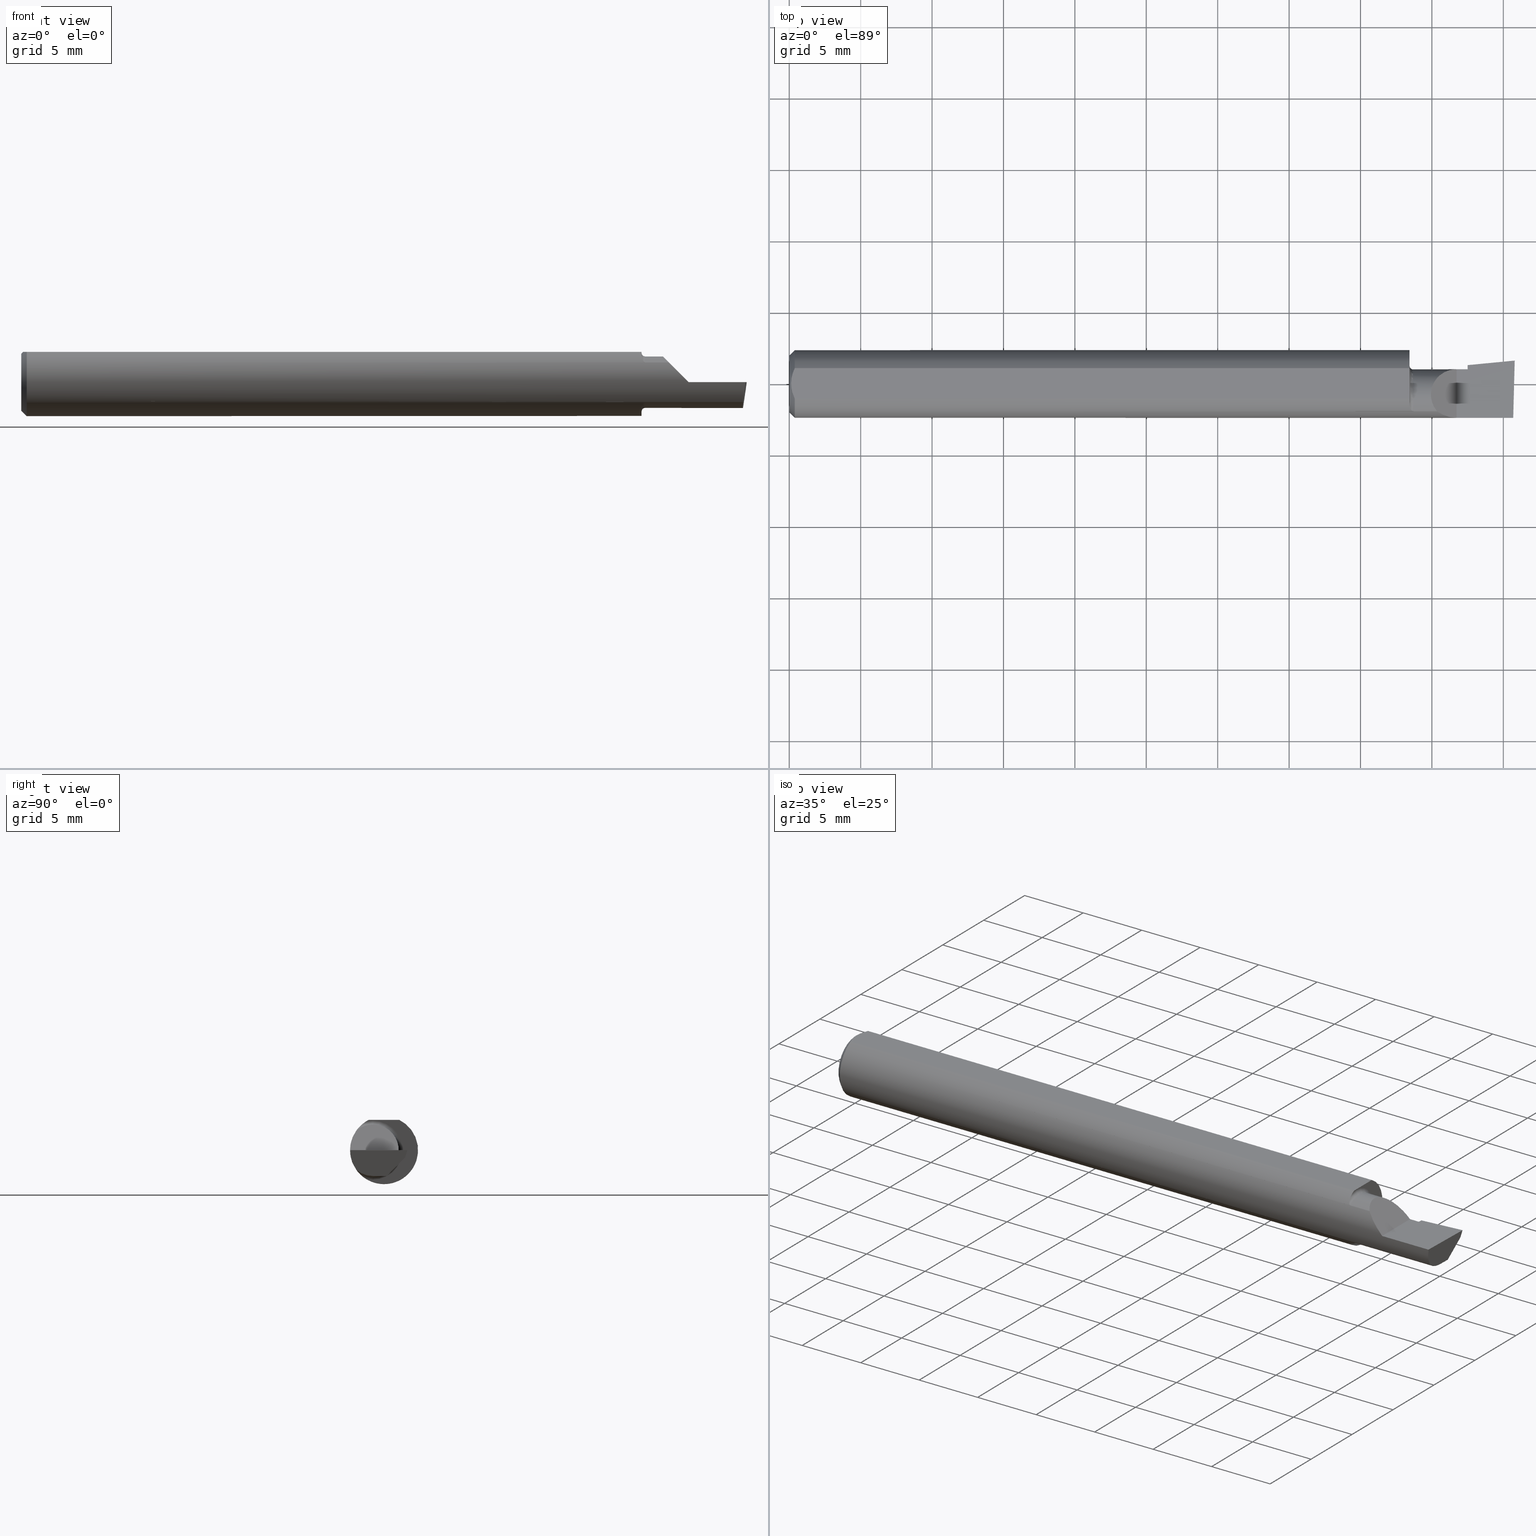
[diagram: canonical four-view strip — front | top / right | iso, engineering-drawing reading convention]
A machine part, canonical four-view strip (front | top / right | iso — engineering-drawing reading convention). The complete STEP part file that produces these views, byte-faithful:
ISO-10303-21;
HEADER;
FILE_DESCRIPTION (( 'STEP AP203' ),
    '1' );
FILE_NAME ('217327-B1601000.STEP',
    '2024-04-23T17:09:40',
    ( '' ),
    ( '' ),
    'SwSTEP 2.0',
    'SolidWorks 2022',
    '' );
FILE_SCHEMA (( 'CONFIG_CONTROL_DESIGN' ));
ENDSEC;

DATA;
#1 = AXIS2_PLACEMENT_3D ( 'NONE', #91, #97, #9 ) ;
#2 = CARTESIAN_POINT ( 'NONE',  ( 1.717274038841562378, -0.07524850451016455721, 0.05566765164098562424 ) ) ;
#3 = CALENDAR_DATE ( 2024, 23, 4 ) ;
#4 = EDGE_CURVE ( 'NONE', #520, #589, #568, .T. ) ;
#5 = CARTESIAN_POINT ( 'NONE',  ( 1.870000000000000107, 0.05188242373431979637, 0.000000000000000000 ) ) ;
#6 = CARTESIAN_POINT ( 'NONE',  ( 1.870000000000000107, -0.03060000000000022424, -0.07100000000000021572 ) ) ;
#7 = B_SPLINE_CURVE_WITH_KNOTS ( 'NONE', 3,
 ( #521, #332, #326, #80, #556, #554 ),
 .UNSPECIFIED., .F., .F.,
 ( 4, 2, 4 ),
 ( 0.005785415439423114564, 0.006333348270144337384, 0.006881281100865561072 ),
 .UNSPECIFIED. ) ;
#8 = AXIS2_PLACEMENT_3D ( 'NONE', #57, #114, #313 ) ;
#9 = DIRECTION ( 'NONE',  ( 0.000000000000000000, -1.000000000000000000, 0.000000000000000000 ) ) ;
#10 = DIRECTION ( 'NONE',  ( 0.9953961983671787417, 0.09584575252022463354, -5.467869873542577569E-16 ) ) ;
#11 = LINE ( 'NONE', #409, #120 ) ;
#12 = FACE_OUTER_BOUND ( 'NONE', #72, .T. ) ;
#13 = CIRCLE ( 'NONE', #580, 0.07100000000000020184 ) ;
#14 = DIRECTION ( 'NONE',  ( 0.000000000000000000, 0.000000000000000000, 1.000000000000000000 ) ) ;
#15 = ORIENTED_EDGE ( 'NONE', *, *, #387, .T. ) ;
#16 = DIRECTION ( 'NONE',  ( -0.000000000000000000, 1.000000000000000000, -0.000000000000000000 ) ) ;
#17 = LINE ( 'NONE', #106, #243 ) ;
#18 = EDGE_LOOP ( 'NONE', ( #101, #60, #285 ) ) ;
#19 = DIRECTION ( 'NONE',  ( 0.000000000000000000, 0.000000000000000000, 1.000000000000000000 ) ) ;
#20 = PRODUCT_DEFINITION ( 'UNKNOWN', '', #179, #455 ) ;
#21 = DIRECTION ( 'NONE',  ( 1.000000000000000000, 4.268512490100411279E-18, 0.000000000000000000 ) ) ;
#22 = APPLICATION_CONTEXT ( 'configuration controlled 3d designs of mechanical parts and assemblies' ) ;
#23 = VERTEX_POINT ( 'NONE', #432 ) ;
#24 = CARTESIAN_POINT ( 'NONE',  ( 1.709999999999999964, 0.04209513035969836975, 0.08360000000000000764 ) ) ;
#25 = VECTOR ( 'NONE', #478, 39.37007874015748854 ) ;
#26 = ORIENTED_EDGE ( 'NONE', *, *, #51, .T. ) ;
#27 = DIRECTION ( 'NONE',  ( 0.7071067811865391350, 8.659560562355035164E-17, 0.7071067811865558994 ) ) ;
#28 = ORIENTED_EDGE ( 'NONE', *, *, #442, .F. ) ;
#29 = EDGE_CURVE ( 'NONE', #616, #217, #559, .T. ) ;
#30 = DIRECTION ( 'NONE',  ( 1.000000000000000000, 0.000000000000000000, 0.000000000000000000 ) ) ;
#31 = EDGE_LOOP ( 'NONE', ( #174, #232, #310, #268 ) ) ;
#32 = FACE_OUTER_BOUND ( 'NONE', #509, .T. ) ;
#33 = CIRCLE ( 'NONE', #394, 0.07100000000000021572 ) ;
#34 = LOCAL_TIME ( 10, 9, 40.00000000000000000, #193 ) ;
#35 = ORIENTED_EDGE ( 'NONE', *, *, #494, .F. ) ;
#36 = CARTESIAN_POINT ( 'NONE',  ( 1.989797099917948398, 0.007796764149783504474, -0.07100000000000021572 ) ) ;
#37 = EDGE_LOOP ( 'NONE', ( #117, #461, #368, #15 ) ) ;
#38 = APPROVAL_ROLE ( '' ) ;
#39 = CARTESIAN_POINT ( 'NONE',  ( 1.709999999999999964, 0.05039999999999997954, 0.000000000000000000 ) ) ;
#40 = ORIENTED_EDGE ( 'NONE', *, *, #144, .T. ) ;
#41 = DIRECTION ( 'NONE',  ( -1.000000000000000000, -4.268512490100411279E-18, 0.000000000000000000 ) ) ;
#42 = ADVANCED_FACE ( 'NONE', ( #89 ), #623, .T. ) ;
#43 = CIRCLE ( 'NONE', #403, 0.09360000000000001652 ) ;
#44 = DIRECTION ( 'NONE',  ( 4.268512490100411279E-18, -1.000000000000000000, 0.000000000000000000 ) ) ;
#45 = PERSON_AND_ORGANIZATION ( #538, #482 ) ;
#46 = EDGE_CURVE ( 'NONE', #314, #616, #514, .T. ) ;
#47 = PLANE ( 'NONE',  #434 ) ;
#48 = ORIENTED_EDGE ( 'NONE', *, *, #612, .F. ) ;
#49 = CARTESIAN_POINT ( 'NONE',  ( 0.005000000000000237761, 1.025183009042025117E-17, 0.08360000000000000764 ) ) ;
#50 = ORIENTED_EDGE ( 'NONE', *, *, #578, .F. ) ;
#51 = EDGE_CURVE ( 'NONE', #130, #266, #610, .T. ) ;
#52 = DIRECTION ( 'NONE',  ( -0.7071067811865516806, 0.000000000000000000, 0.7071067811865433539 ) ) ;
#53 = VECTOR ( 'NONE', #121, 39.37007874015748143 ) ;
#54 = CARTESIAN_POINT ( 'NONE',  ( 1.718473676570713593, -0.07585610839796945448, 0.05483680961684311850 ) ) ;
#55 = ORIENTED_EDGE ( 'NONE', *, *, #318, .T. ) ;
#56 = CARTESIAN_POINT ( 'NONE',  ( 1.995862624392068074, -0.09360000000000009979, -6.605666309584466665E-17 ) ) ;
#57 = CARTESIAN_POINT ( 'NONE',  ( 1.719999999999999973, -0.03060000000000023118, 0.000000000000000000 ) ) ;
#58 = LINE ( 'NONE', #264, #364 ) ;
#59 = DIRECTION ( 'NONE',  ( 0.02617694830786939167, 0.9996573249755573709, -4.246274422243602914E-17 ) ) ;
#60 = ORIENTED_EDGE ( 'NONE', *, *, #353, .F. ) ;
#61 = DIRECTION ( 'NONE',  ( 0.000000000000000000, 1.000000000000000000, 0.000000000000000000 ) ) ;
#62 = ORIENTED_EDGE ( 'NONE', *, *, #414, .F. ) ;
#63 = CARTESIAN_POINT ( 'NONE',  ( 1.770398118553869082, 0.04039999999999997760, 0.06960188144613024819 ) ) ;
#64 = CARTESIAN_POINT ( 'NONE',  ( 1.714827003863616639, -0.07277143353888318456, -0.05888471105536113165 ) ) ;
#65 = EDGE_LOOP ( 'NONE', ( #424, #572, #274, #358, #83 ) ) ;
#66 = EDGE_CURVE ( 'NONE', #520, #330, #13, .T. ) ;
#67 = CARTESIAN_POINT ( 'NONE',  ( 1.720000000000000195, -0.07608366013071793388, -0.05451822320209443601 ) ) ;
#68 = ORIENTED_EDGE ( 'NONE', *, *, #167, .T. ) ;
#69 = DIRECTION ( 'NONE',  ( 1.000000000000000000, 4.268512490100411279E-18, 0.000000000000000000 ) ) ;
#70 = VECTOR ( 'NONE', #290, 39.37007874015748143 ) ;
#71 = VECTOR ( 'NONE', #16, 39.37007874015748143 ) ;
#72 = EDGE_LOOP ( 'NONE', ( #504, #320, #614, #201 ) ) ;
#73 = PLANE ( 'NONE',  #532 ) ;
#74 = ADVANCED_FACE ( 'NONE', ( #575 ), #309, .T. ) ;
#75 = CARTESIAN_POINT ( 'NONE',  ( 1.989625015145392917, -0.07608366013071815592, -0.05451822320209428335 ) ) ;
#76 =( NAMED_UNIT ( * ) SI_UNIT ( $, .STERADIAN. ) SOLID_ANGLE_UNIT ( ) );
#77 = DIRECTION ( 'NONE',  ( -4.268512490100411279E-18, 1.000000000000000000, 0.000000000000000000 ) ) ;
#78 = ORIENTED_EDGE ( 'NONE', *, *, #516, .T. ) ;
#79 = ADVANCED_FACE ( 'NONE', ( #12 ), #360, .F. ) ;
#80 = CARTESIAN_POINT ( 'NONE',  ( 0.005975039161239527503, -0.01453776427033146371, 0.08359999999999996600 ) ) ;
#81 = AXIS2_PLACEMENT_3D ( 'NONE', #450, #600, #597 ) ;
#82 = SECURITY_CLASSIFICATION ( '', '', #617 ) ;
#83 = ORIENTED_EDGE ( 'NONE', *, *, #293, .T. ) ;
#84 = CARTESIAN_POINT ( 'NONE',  ( 0.000000000000000000, 0.000000000000000000, 0.000000000000000000 ) ) ;
#85 = CC_DESIGN_PERSON_AND_ORGANIZATION_ASSIGNMENT ( #240, #480, ( #454 ) ) ;
#86 = CARTESIAN_POINT ( 'NONE',  ( 1.995862624392068074, -0.09360000000000009979, -6.605666309584466665E-17 ) ) ;
#87 = DIRECTION ( 'NONE',  ( 2.972230601656782806E-18, -0.6963153109074925462, -0.7177360153954948085 ) ) ;
#88 = PERSON_AND_ORGANIZATION ( #538, #482 ) ;
#89 = FACE_OUTER_BOUND ( 'NONE', #486, .T. ) ;
#90 = LENGTH_MEASURE_WITH_UNIT ( LENGTH_MEASURE( 0.02539999999999999897 ), #286 );
#91 = CARTESIAN_POINT ( 'NONE',  ( 1.709999999999999964, -0.03060000000000022424, 0.000000000000000000 ) ) ;
#92 = CIRCLE ( 'NONE', #311, 0.07100000000000021572 ) ;
#93 = EDGE_CURVE ( 'NONE', #404, #283, #189, .T. ) ;
#94 = CARTESIAN_POINT ( 'NONE',  ( 1.709999999999999964, -0.05124705882352875719, -0.07832431909654745394 ) ) ;
#95 = ADVANCED_FACE ( 'NONE', ( #212 ), #406, .F. ) ;
#96 =( BOUNDED_CURVE ( )  B_SPLINE_CURVE ( 3, ( #398, #214, #63, #102 ),
 .UNSPECIFIED., .F., .T. ) 
 B_SPLINE_CURVE_WITH_KNOTS ( ( 4, 4 ),
 ( 5.587886473277674071, 7.853981633974482790 ),
 .UNSPECIFIED. ) 
 CURVE ( )  GEOMETRIC_REPRESENTATION_ITEM ( )  RATIONAL_B_SPLINE_CURVE ( ( 1.000000000000000000, 0.6159343746860732605, 0.6159343746860732605, 1.000000000000000000 ) ) 
 REPRESENTATION_ITEM ( '' )  );
#97 = DIRECTION ( 'NONE',  ( -1.000000000000000000, -4.268512490100411279E-18, -0.000000000000000000 ) ) ;
#98 = ADVANCED_FACE ( 'NONE', ( #508 ), #481, .F. ) ;
#99 = DIRECTION ( 'NONE',  ( 0.000000000000000000, 0.000000000000000000, 1.000000000000000000 ) ) ;
#100 = CARTESIAN_POINT ( 'NONE',  ( 1.870000000000000107, 0.04838794157681239327, -0.01137731495658559841 ) ) ;
#101 = ORIENTED_EDGE ( 'NONE', *, *, #4, .T. ) ;
#102 = CARTESIAN_POINT ( 'NONE',  ( 1.840000000000000080, 0.04039999999999989433, 1.959434878635762025E-17 ) ) ;
#103 = DIRECTION ( 'NONE',  ( 0.9953961983671800740, 0.09584575252021031166, -0.000000000000000000 ) ) ;
#104 = CARTESIAN_POINT ( 'NONE',  ( 1.993440754331651465, -0.09359999999999997489, -0.01971778966533913047 ) ) ;
#105 = EDGE_CURVE ( 'NONE', #217, #397, #139, .T. ) ;
#106 = CARTESIAN_POINT ( 'NONE',  ( 1.988799325593724632, -0.03030670001847553252, -0.07100000000000021572 ) ) ;
#107 = ORIENTED_EDGE ( 'NONE', *, *, #66, .T. ) ;
#108 = DIRECTION ( 'NONE',  ( 0.09165774897393337561, -0.9519021185660613282, 0.2923717047227308297 ) ) ;
#109 = CARTESIAN_POINT ( 'NONE',  ( 2.000000000000000000, 0.1436000000000000332, 0.08359999999999999376 ) ) ;
#110 = APPROVAL ( #131, 'UNSPECIFIED' ) ;
#111 = ORIENTED_EDGE ( 'NONE', *, *, #585, .F. ) ;
#112 = AXIS2_PLACEMENT_3D ( 'NONE', #288, #479, #44 ) ;
#113 = FACE_OUTER_BOUND ( 'NONE', #119, .T. ) ;
#114 = DIRECTION ( 'NONE',  ( -1.000000000000000000, -4.268512490100411279E-18, -0.000000000000000000 ) ) ;
#115 = ORIENTED_EDGE ( 'NONE', *, *, #279, .F. ) ;
#116 = PLANE ( 'NONE',  #169 ) ;
#117 = ORIENTED_EDGE ( 'NONE', *, *, #484, .T. ) ;
#118 = CARTESIAN_POINT ( 'NONE',  ( 1.870000000000000107, -0.03060000000000022424, 0.000000000000000000 ) ) ;
#119 = EDGE_LOOP ( 'NONE', ( #418, #221, #146, #355, #111 ) ) ;
#120 = VECTOR ( 'NONE', #599, 39.37007874015748143 ) ;
#121 = DIRECTION ( 'NONE',  ( 1.000000000000000000, 0.000000000000000000, 0.000000000000000000 ) ) ;
#122 = AXIS2_PLACEMENT_3D ( 'NONE', #452, #154, #255 ) ;
#123 = VERTEX_POINT ( 'NONE', #365 ) ;
#124 = CARTESIAN_POINT ( 'NONE',  ( 2.075578470192265268, -0.1475581462076027695, 0.6605145482336969298 ) ) ;
#125 = CARTESIAN_POINT ( 'NONE',  ( 1.870000000000000107, -0.2500000000000000555, 3.114870918614344945E-18 ) ) ;
#126 = ADVANCED_FACE ( 'NONE', ( #205 ), #116, .F. ) ;
#127 = ORIENTED_EDGE ( 'NONE', *, *, #194, .F. ) ;
#128 = PERSON_AND_ORGANIZATION ( #538, #482 ) ;
#129 = DIRECTION ( 'NONE',  ( 4.268512490100411279E-18, -1.000000000000000000, 0.000000000000000000 ) ) ;
#130 = VERTEX_POINT ( 'NONE', #501 ) ;
#131 = APPROVAL_STATUS ( 'not_yet_approved' ) ;
#132 = CARTESIAN_POINT ( 'NONE',  ( 1.785481776797905207, -0.07608366013071816980, 0.05451822320209426254 ) ) ;
#133 = VECTOR ( 'NONE', #27, 39.37007874015748143 ) ;
#134 = CC_DESIGN_APPROVAL ( #427, ( #179 ) ) ;
#135 = VERTEX_POINT ( 'NONE', #24 ) ;
#136 = DATE_AND_TIME ( #289, #207 ) ;
#137 = EDGE_CURVE ( 'NONE', #277, #217, #524, .T. ) ;
#138 = DIMENSIONAL_EXPONENTS ( 1.000000000000000000, 0.000000000000000000, 0.000000000000000000, 0.000000000000000000, 0.000000000000000000, 0.000000000000000000, 0.000000000000000000 ) ;
#139 = B_SPLINE_CURVE_WITH_KNOTS ( 'NONE', 3,
 ( #67, #163, #357, #305, #267, #548, #64, #506, #496, #265, #413, #603 ),
 .UNSPECIFIED., .F., .F.,
 ( 4, 2, 2, 2, 2, 4 ),
 ( 1.960583526681140727E-07, 6.028985140017707658E-05, 0.0001203836444476860413, 0.0002405712305427156665, 0.0004809464027327820185, 0.0009616967471129146683 ),
 .UNSPECIFIED. ) ;
#140 = CARTESIAN_POINT ( 'NONE',  ( 1.989539383090032976, 0.03890407463132242172, -0.07973011203839537597 ) ) ;
#141 = VERTEX_POINT ( 'NONE', #155 ) ;
#142 = COORDINATED_UNIVERSAL_TIME_OFFSET ( 8, 0, .BEHIND. ) ;
#143 = CARTESIAN_POINT ( 'NONE',  ( 1.715489888950000541, -0.07368588061300233860, 0.05773267164777336202 ) ) ;
#144 = EDGE_CURVE ( 'NONE', #266, #411, #350, .T. ) ;
#145 = APPROVAL_STATUS ( 'not_yet_approved' ) ;
#146 = ORIENTED_EDGE ( 'NONE', *, *, #414, .T. ) ;
#147 = CARTESIAN_POINT ( 'NONE',  ( 1.709999999999999964, -0.05124705882352875719, 0.07832431909654745394 ) ) ;
#148 = B_SPLINE_CURVE_WITH_KNOTS ( 'NONE', 3,
 ( #49, #250, #444, #297, #200, #396 ),
 .UNSPECIFIED., .F., .F.,
 ( 4, 2, 4 ),
 ( 0.006881281100865561072, 0.007427683811376461706, 0.007974086521887361473 ),
 .UNSPECIFIED. ) ;
#149 = VECTOR ( 'NONE', #530, 39.37007874015748143 ) ;
#150 = AXIS2_PLACEMENT_3D ( 'NONE', #84, #334, #389 ) ;
#151 = CARTESIAN_POINT ( 'NONE',  ( 1.997375993425186236, 0.05800444260848391931, -0.02000000000000000042 ) ) ;
#152 = CARTESIAN_POINT ( 'NONE',  ( 0.01499999999999999771, 0.000000000000000000, 0.000000000000000000 ) ) ;
#153 = CARTESIAN_POINT ( 'NONE',  ( 0.01499999999999999771, 0.000000000000000000, 0.000000000000000000 ) ) ;
#154 = DIRECTION ( 'NONE',  ( 0.06894566448119621160, -0.7160281025913034503, 0.6946583704589934793 ) ) ;
#155 = CARTESIAN_POINT ( 'NONE',  ( 1.785481776797905207, -0.07608366013071816980, 0.05451822320209426254 ) ) ;
#156 = AXIS2_PLACEMENT_3D ( 'NONE', #5, #393, #195 ) ;
#157 = EDGE_CURVE ( 'NONE', #23, #261, #493, .T. ) ;
#158 = LOCAL_TIME ( 10, 9, 40.00000000000000000, #142 ) ;
#159 = LINE ( 'NONE', #258, #71 ) ;
#160 = EDGE_CURVE ( 'NONE', #197, #565, #541, .T. ) ;
#161 = ORIENTED_EDGE ( 'NONE', *, *, #167, .F. ) ;
#162 = CARTESIAN_POINT ( 'NONE',  ( 0.000000000000000000, 0.000000000000000000, 0.000000000000000000 ) ) ;
#163 = CARTESIAN_POINT ( 'NONE',  ( 1.719195764731853204, -0.07608366013071808653, -0.05451822320209438744 ) ) ;
#164 = EDGE_CURVE ( 'NONE', #314, #236, #17, .T. ) ;
#165 = ORIENTED_EDGE ( 'NONE', *, *, #442, .T. ) ;
#166 = PLANE ( 'NONE',  #270 ) ;
#167 = EDGE_CURVE ( 'NONE', #416, #130, #259, .T. ) ;
#168 = ORIENTED_EDGE ( 'NONE', *, *, #160, .F. ) ;
#169 = AXIS2_PLACEMENT_3D ( 'NONE', #109, #316, #308 ) ;
#170 = CARTESIAN_POINT ( 'NONE',  ( 1.870000000000000107, -0.03060000000000022424, 0.000000000000000000 ) ) ;
#171 = EDGE_CURVE ( 'NONE', #197, #135, #329, .T. ) ;
#172 = ORIENTED_EDGE ( 'NONE', *, *, #157, .T. ) ;
#173 = CARTESIAN_POINT ( 'NONE',  ( 0.005000000000000237761, 1.025183009042025117E-17, 0.08360000000000000764 ) ) ;
#174 = ORIENTED_EDGE ( 'NONE', *, *, #345, .T. ) ;
#175 = CARTESIAN_POINT ( 'NONE',  ( 0.000000000000000000, 0.000000000000000000, -0.07859999999999965625 ) ) ;
#176 = CARTESIAN_POINT ( 'NONE',  ( 1.988791645263412011, -0.03060000000000022424, -0.07100000000000021572 ) ) ;
#177 = ADVANCED_FACE ( 'NONE', ( #322 ), #525, .F. ) ;
#178 = CARTESIAN_POINT ( 'NONE',  ( 5.659797890829555466E-31, -0.09359999999999998876, 1.030335658007946046E-15 ) ) ;
#179 = PRODUCT_DEFINITION_FORMATION_WITH_SPECIFIED_SOURCE ( 'ANY', '', #454, .NOT_KNOWN. ) ;
#180 = ORIENTED_EDGE ( 'NONE', *, *, #516, .F. ) ;
#181 = PERSON_AND_ORGANIZATION_ROLE ( 'creator' ) ;
#182 = CARTESIAN_POINT ( 'NONE',  ( 0.01499999999999999771, 1.146269404001922775E-17, 0.09360000000000001652 ) ) ;
#183 = ORIENTED_EDGE ( 'NONE', *, *, #216, .T. ) ;
#184 = COORDINATED_UNIVERSAL_TIME_OFFSET ( 8, 0, .BEHIND. ) ;
#185 = FACE_OUTER_BOUND ( 'NONE', #37, .T. ) ;
#186 = ORIENTED_EDGE ( 'NONE', *, *, #440, .F. ) ;
#187 = APPLICATION_PROTOCOL_DEFINITION ( 'international standard', 'config_control_design', 1994, #22 ) ;
#188 = CARTESIAN_POINT ( 'NONE',  ( 1.716784836976331441, -0.07487406389417279595, 0.05617172020063040255 ) ) ;
#189 = CIRCLE ( 'NONE', #269, 0.09360000000000001652 ) ;
#190 = ORIENTED_EDGE ( 'NONE', *, *, #171, .T. ) ;
#191 = DATE_AND_TIME ( #378, #490 ) ;
#192 = CARTESIAN_POINT ( 'NONE',  ( 1.710534125572247044, -0.06132673142899455060, 0.07097811612434590245 ) ) ;
#193 = COORDINATED_UNIVERSAL_TIME_OFFSET ( 8, 0, .BEHIND. ) ;
#194 = EDGE_CURVE ( 'NONE', #266, #330, #276, .T. ) ;
#195 = DIRECTION ( 'NONE',  ( 4.268512490100411279E-18, -1.000000000000000000, 0.000000000000000000 ) ) ;
#196 = DIRECTION ( 'NONE',  ( 1.000000000000000000, 4.268512490100411279E-18, 0.000000000000000000 ) ) ;
#197 = VERTEX_POINT ( 'NONE', #423 ) ;
#198 = CARTESIAN_POINT ( 'NONE',  ( 0.000000000000000000, 1.054420894065869177E-17, 0.07859999999999965625 ) ) ;
#199 = VECTOR ( 'NONE', #426, 39.37007874015748143 ) ;
#200 = CARTESIAN_POINT ( 'NONE',  ( 0.01203648650249650870, 0.03550565407121124978, 0.08360000000000000764 ) ) ;
#201 = ORIENTED_EDGE ( 'NONE', *, *, #324, .T. ) ;
#202 = LINE ( 'NONE', #208, #445 ) ;
#203 = EDGE_LOOP ( 'NONE', ( #50, #607, #539 ) ) ;
#204 = CARTESIAN_POINT ( 'NONE',  ( 0.01499999999999999771, 0.000000000000000000, -0.09360000000000001652 ) ) ;
#205 = FACE_OUTER_BOUND ( 'NONE', #553, .T. ) ;
#206 = AXIS2_PLACEMENT_3D ( 'NONE', #220, #354, #417 ) ;
#207 = LOCAL_TIME ( 10, 9, 40.00000000000000000, #569 ) ;
#208 = CARTESIAN_POINT ( 'NONE',  ( 2.000000000000000000, -0.03060000000000022424, -0.07100000000000021572 ) ) ;
#209 = ORIENTED_EDGE ( 'NONE', *, *, #318, .F. ) ;
#210 = DIRECTION ( 'NONE',  ( -1.000000000000000000, -0.000000000000000000, -0.000000000000000000 ) ) ;
#211 = EDGE_CURVE ( 'NONE', #336, #224, #615, .T. ) ;
#212 = FACE_OUTER_BOUND ( 'NONE', #441, .T. ) ;
#213 = ORIENTED_EDGE ( 'NONE', *, *, #293, .F. ) ;
#214 = CARTESIAN_POINT ( 'NONE',  ( 1.740893772288689023, -0.02263899945514331880, 0.09910622771130976616 ) ) ;
#215 = DIRECTION ( 'NONE',  ( 0.000000000000000000, 1.000000000000000000, 0.000000000000000000 ) ) ;
#216 = EDGE_CURVE ( 'NONE', #555, #141, #407, .T. ) ;
#217 = VERTEX_POINT ( 'NONE', #229 ) ;
#218 = AXIS2_PLACEMENT_3D ( 'NONE', #567, #284, #281 ) ;
#219 = CC_DESIGN_APPROVAL ( #110, ( #82 ) ) ;
#220 = CARTESIAN_POINT ( 'NONE',  ( 1.720000000000000195, -0.03060000000000022424, 0.000000000000000000 ) ) ;
#221 = ORIENTED_EDGE ( 'NONE', *, *, #211, .T. ) ;
#222 = DIRECTION ( 'NONE',  ( -1.000000000000000000, -4.268512490100411279E-18, 0.000000000000000000 ) ) ;
#223 = ADVANCED_FACE ( 'NONE', ( #32 ), #73, .F. ) ;
#224 = VERTEX_POINT ( 'NONE', #173 ) ;
#225 = CARTESIAN_POINT ( 'NONE',  ( 0.000000000000000000, 0.000000000000000000, 0.000000000000000000 ) ) ;
#226 = ORIENTED_EDGE ( 'NONE', *, *, #66, .F. ) ;
#227 = CC_DESIGN_PERSON_AND_ORGANIZATION_ASSIGNMENT ( #529, #624, ( #82 ) ) ;
#228 = AXIS2_PLACEMENT_3D ( 'NONE', #225, #30, #515 ) ;
#229 = CARTESIAN_POINT ( 'NONE',  ( 1.720000000000000195, -0.07608366013071793388, -0.05451822320209443601 ) ) ;
#230 = VECTOR ( 'NONE', #447, 39.37007874015748143 ) ;
#231 = EDGE_CURVE ( 'NONE', #520, #123, #33, .T. ) ;
#232 = ORIENTED_EDGE ( 'NONE', *, *, #137, .T. ) ;
#233 = APPLICATION_PROTOCOL_DEFINITION ( 'international standard', 'config_control_design', 1994, #247 ) ;
#234 = EDGE_CURVE ( 'NONE', #330, #520, #420, .T. ) ;
#235 = CARTESIAN_POINT ( 'NONE',  ( 1.840000000000000080, -0.09360000000000005815, 1.959434878635762025E-17 ) ) ;
#236 = VERTEX_POINT ( 'NONE', #36 ) ;
#237 =( BOUNDED_CURVE ( )  B_SPLINE_CURVE ( 3, ( #56, #104, #543, #312 ),
 .UNSPECIFIED., .F., .T. ) 
 B_SPLINE_CURVE_WITH_KNOTS ( ( 4, 4 ),
 ( 4.922438424664829171, 5.544189768309972344 ),
 .UNSPECIFIED. ) 
 CURVE ( )  GEOMETRIC_REPRESENTATION_ITEM ( )  RATIONAL_B_SPLINE_CURVE ( ( 1.000000000000000000, 0.9680440490283177546, 0.9680440490283177546, 1.000000000000000000 ) ) 
 REPRESENTATION_ITEM ( '' )  );
#238 = DIRECTION ( 'NONE',  ( -4.268512490100411279E-18, 1.000000000000000000, 2.344761903626518103E-33 ) ) ;
#239 = ORIENTED_EDGE ( 'NONE', *, *, #345, .F. ) ;
#240 = PERSON_AND_ORGANIZATION ( #538, #482 ) ;
#241 = CARTESIAN_POINT ( 'NONE',  ( 1.713144100988027274, -0.06997305607905093816, 0.06223599654134575471 ) ) ;
#242 = AXIS2_PLACEMENT_3D ( 'NONE', #287, #210, #14 ) ;
#243 = VECTOR ( 'NONE', #59, 39.37007874015748143 ) ;
#244 = CC_DESIGN_APPROVAL ( #604, ( #20 ) ) ;
#245 = APPROVAL_STATUS ( 'not_yet_approved' ) ;
#246 = LINE ( 'NONE', #537, #460 ) ;
#247 = APPLICATION_CONTEXT ( 'configuration controlled 3d designs of mechanical parts and assemblies' ) ;
#248 = MANIFOLD_SOLID_BREP ( 'Extrude7', #613 ) ;
#249 = VERTEX_POINT ( 'NONE', #175 ) ;
#250 = CARTESIAN_POINT ( 'NONE',  ( 0.005000000000000227353, 0.007308422719211826561, 0.08360000000000000764 ) ) ;
#251 = ORIENTED_EDGE ( 'NONE', *, *, #105, .F. ) ;
#252 = CC_DESIGN_PERSON_AND_ORGANIZATION_ASSIGNMENT ( #339, #563, ( #179 ) ) ;
#253 = FACE_OUTER_BOUND ( 'NONE', #497, .T. ) ;
#254 = VECTOR ( 'NONE', #238, 39.37007874015748143 ) ;
#255 = DIRECTION ( 'NONE',  ( 0.000000000000000000, -0.6963153109074925462, -0.7177360153954948085 ) ) ;
#256 = FACE_OUTER_BOUND ( 'NONE', #377, .T. ) ;
#257 = CARTESIAN_POINT ( 'NONE',  ( 1.991772787678609324, -0.2497845628634190740, -6.377686106282058433E-17 ) ) ;
#258 = CARTESIAN_POINT ( 'NONE',  ( 1.840000000000000080, -0.2500000000000000555, 1.959434878635762025E-17 ) ) ;
#259 = LINE ( 'NONE', #125, #254 ) ;
#260 = VECTOR ( 'NONE', #335, 39.37007874015748854 ) ;
#261 = VERTEX_POINT ( 'NONE', #86 ) ;
#262 = FACE_OUTER_BOUND ( 'NONE', #550, .T. ) ;
#263 = VERTEX_POINT ( 'NONE', #369 ) ;
#264 = CARTESIAN_POINT ( 'NONE',  ( 1.013387277386880170, -0.03060000000000022771, 4.736658843696218569E-16 ) ) ;
#265 = CARTESIAN_POINT ( 'NONE',  ( 1.710545495784617565, -0.06137120719773635213, -0.07093526316025884626 ) ) ;
#266 = VERTEX_POINT ( 'NONE', #611 ) ;
#267 = CARTESIAN_POINT ( 'NONE',  ( 1.716772139689988652, -0.07486452143272069593, -0.05618454731867568441 ) ) ;
#268 = ORIENTED_EDGE ( 'NONE', *, *, #387, .F. ) ;
#269 = AXIS2_PLACEMENT_3D ( 'NONE', #459, #21, #215 ) ;
#270 = AXIS2_PLACEMENT_3D ( 'NONE', #124, #591, #457 ) ;
#271 = LINE ( 'NONE', #468, #489 ) ;
#272 = ORIENTED_EDGE ( 'NONE', *, *, #171, .F. ) ;
#273 = DIRECTION ( 'NONE',  ( -1.000000000000000000, -4.268512490100411279E-18, -0.000000000000000000 ) ) ;
#274 = ORIENTED_EDGE ( 'NONE', *, *, #585, .T. ) ;
#275 = APPROVAL_ROLE ( '' ) ;
#276 = LINE ( 'NONE', #510, #415 ) ;
#277 = VERTEX_POINT ( 'NONE', #475 ) ;
#278 = PERSON_AND_ORGANIZATION_ROLE ( 'design_supplier' ) ;
#279 = EDGE_CURVE ( 'NONE', #261, #555, #462, .T. ) ;
#280 = VECTOR ( 'NONE', #367, 39.37007874015748854 ) ;
#281 = DIRECTION ( 'NONE',  ( 0.000000000000000000, 0.000000000000000000, 1.000000000000000000 ) ) ;
#282 = CC_DESIGN_SECURITY_CLASSIFICATION ( #82, ( #179 ) ) ;
#283 = VERTEX_POINT ( 'NONE', #373 ) ;
#284 = DIRECTION ( 'NONE',  ( -1.000000000000000000, -0.000000000000000000, -0.000000000000000000 ) ) ;
#285 = ORIENTED_EDGE ( 'NONE', *, *, #231, .F. ) ;
#286 =( LENGTH_UNIT ( ) NAMED_UNIT ( * ) SI_UNIT ( $, .METRE. ) );
#287 = CARTESIAN_POINT ( 'NONE',  ( 0.000000000000000000, 0.000000000000000000, 0.000000000000000000 ) ) ;
#288 = CARTESIAN_POINT ( 'NONE',  ( 0.000000000000000000, -0.03060000000000023118, 0.000000000000000000 ) ) ;
#289 = CALENDAR_DATE ( 2024, 23, 4 ) ;
#290 = DIRECTION ( 'NONE',  ( 1.000000000000000000, 4.268512490100411279E-18, 0.000000000000000000 ) ) ;
#291 = AXIS2_PLACEMENT_3D ( 'NONE', #153, #349, #99 ) ;
#292 = ADVANCED_FACE ( 'NONE', ( #376 ), #472, .T. ) ;
#293 = EDGE_CURVE ( 'NONE', #328, #224, #7, .T. ) ;
#294 = CARTESIAN_POINT ( 'NONE',  ( 1.709999999999999964, -0.04209513035969836975, 0.08360000000000000764 ) ) ;
#295 = CC_DESIGN_DATE_AND_TIME_ASSIGNMENT ( #191, #386, ( #82 ) ) ;
#296 = ORIENTED_EDGE ( 'NONE', *, *, #348, .F. ) ;
#297 = CARTESIAN_POINT ( 'NONE',  ( 0.009492654797564340635, 0.02859466010166628394, 0.08359999999999997988 ) ) ;
#298 = ADVANCED_FACE ( 'NONE', ( #185 ), #519, .T. ) ;
#299 = LINE ( 'NONE', #140, #260 ) ;
#300 = APPROVAL_PERSON_ORGANIZATION ( #45, #604, #275 ) ;
#301 = DIRECTION ( 'NONE',  ( 0.000000000000000000, -0.2936076258024065133, -0.9559260233253794592 ) ) ;
#302 = DIRECTION ( 'NONE',  ( -1.000000000000000000, 0.000000000000000000, 5.493159289247764363E-16 ) ) ;
#303 = CARTESIAN_POINT ( 'NONE',  ( 1.870000000000000107, -0.03060000000000022424, 0.000000000000000000 ) ) ;
#304 = DIRECTION ( 'NONE',  ( 1.000000000000000000, 0.000000000000000000, 0.000000000000000000 ) ) ;
#305 = CARTESIAN_POINT ( 'NONE',  ( 1.717255593289993776, -0.07523687841986032021, -0.05568342680279920326 ) ) ;
#306 = EDGE_LOOP ( 'NONE', ( #546, #400 ) ) ;
#307 = CARTESIAN_POINT ( 'NONE',  ( 1.449010493224923035, 0.01134574482580407925, -6.829619984160658046E-17 ) ) ;
#308 = DIRECTION ( 'NONE',  ( 0.000000000000000000, 1.000000000000000000, -1.189000693621284344E-16 ) ) ;
#309 = CONICAL_SURFACE ( 'NONE', #331, 0.09360000000000001652, 0.7853981633974601584 ) ;
#310 = ORIENTED_EDGE ( 'NONE', *, *, #105, .T. ) ;
#311 = AXIS2_PLACEMENT_3D ( 'NONE', #170, #371, #560 ) ;
#312 = CARTESIAN_POINT ( 'NONE',  ( 1.989625015145392917, -0.07608366013071815592, -0.05451822320209428335 ) ) ;
#313 = DIRECTION ( 'NONE',  ( 4.268512490100411279E-18, -1.000000000000000000, 0.000000000000000000 ) ) ;
#314 = VERTEX_POINT ( 'NONE', #319 ) ;
#315 = B_SPLINE_CURVE_WITH_KNOTS ( 'NONE', 3,
 ( #147, #485, #192, #383, #241, #487, #143, #188, #2, #54, #390, #483 ),
 .UNSPECIFIED., .F., .F.,
 ( 4, 2, 2, 2, 2, 4 ),
 ( 0.0001292192584720408327, 0.0006028894267275358015, 0.0008397245108552831233, 0.0009581420529191532606, 0.001017350823951088546, 0.001076559594983023506 ),
 .UNSPECIFIED. ) ;
#316 = DIRECTION ( 'NONE',  ( 0.000000000000000000, -1.189000693621284344E-16, -1.000000000000000000 ) ) ;
#317 = ORIENTED_EDGE ( 'NONE', *, *, #194, .T. ) ;
#318 = EDGE_CURVE ( 'NONE', #236, #411, #271, .T. ) ;
#319 = CARTESIAN_POINT ( 'NONE',  ( 1.988791645263412011, -0.03060000000000022424, -0.07100000000000021572 ) ) ;
#320 = ORIENTED_EDGE ( 'NONE', *, *, #540, .T. ) ;
#321 = VECTOR ( 'NONE', #87, 39.37007874015748854 ) ;
#322 = FACE_OUTER_BOUND ( 'NONE', #306, .T. ) ;
#323 = CARTESIAN_POINT ( 'NONE',  ( 1.988641161029047311, -0.06318680184005825984, -0.06527786071030773629 ) ) ;
#324 = EDGE_CURVE ( 'NONE', #589, #236, #577, .T. ) ;
#325 = PLANE ( 'NONE',  #122 ) ;
#326 = CARTESIAN_POINT ( 'NONE',  ( 0.009539353699420834165, -0.02875682547511369813, 0.08360000000000003539 ) ) ;
#327 = ADVANCED_FACE ( 'NONE', ( #346 ), #388, .T. ) ;
#328 = VERTEX_POINT ( 'NONE', #574 ) ;
#329 = LINE ( 'NONE', #379, #53 ) ;
#330 = VERTEX_POINT ( 'NONE', #536 ) ;
#331 = AXIS2_PLACEMENT_3D ( 'NONE', #152, #534, #347 ) ;
#332 = CARTESIAN_POINT ( 'NONE',  ( 0.01206089165507027647, -0.03555991978469315307, 0.08360000000000003539 ) ) ;
#333 = ORIENTED_EDGE ( 'NONE', *, *, #337, .F. ) ;
#334 = DIRECTION ( 'NONE',  ( 0.000000000000000000, 0.000000000000000000, 1.000000000000000000 ) ) ;
#335 = DIRECTION ( 'NONE',  ( 0.1240019227989323097, 0.3022330132596648400, 0.9451342385281314984 ) ) ;
#336 = VERTEX_POINT ( 'NONE', #198 ) ;
#337 = EDGE_CURVE ( 'NONE', #135, #404, #246, .T. ) ;
#338 = CARTESIAN_POINT ( 'NONE',  ( -3.030643867965641156E-19, 0.04039999999999997066, 1.030335658007946046E-15 ) ) ;
#339 = PERSON_AND_ORGANIZATION ( #538, #482 ) ;
#340 = ORIENTED_EDGE ( 'NONE', *, *, #157, .F. ) ;
#341 = LINE ( 'NONE', #338, #70 ) ;
#342 = AXIS2_PLACEMENT_3D ( 'NONE', #593, #410, #302 ) ;
#343 = CC_DESIGN_PERSON_AND_ORGANIZATION_ASSIGNMENT ( #88, #181, ( #20 ) ) ;
#344 =( GEOMETRIC_REPRESENTATION_CONTEXT ( 3 ) GLOBAL_UNCERTAINTY_ASSIGNED_CONTEXT ( ( #549 ) ) GLOBAL_UNIT_ASSIGNED_CONTEXT ( ( #429, #523, #76 ) ) REPRESENTATION_CONTEXT ( 'NONE', 'WORKASPACE' ) );
#345 = EDGE_CURVE ( 'NONE', #283, #277, #315, .T. ) ;
#346 = FACE_OUTER_BOUND ( 'NONE', #18, .T. ) ;
#347 = DIRECTION ( 'NONE',  ( 0.000000000000000000, 0.000000000000000000, -1.000000000000000000 ) ) ;
#348 = EDGE_CURVE ( 'NONE', #263, #416, #341, .T. ) ;
#349 = DIRECTION ( 'NONE',  ( -1.000000000000000000, -0.000000000000000000, -0.000000000000000000 ) ) ;
#350 = LINE ( 'NONE', #542, #362 ) ;
#351 = CIRCLE ( 'NONE', #570, 0.07859999999999965625 ) ;
#352 = DIRECTION ( 'NONE',  ( 1.000000000000000000, 4.268512490100411279E-18, 0.000000000000000000 ) ) ;
#353 = EDGE_CURVE ( 'NONE', #123, #589, #533, .T. ) ;
#354 = DIRECTION ( 'NONE',  ( -1.000000000000000000, -4.268512490100411279E-18, -0.000000000000000000 ) ) ;
#355 = ORIENTED_EDGE ( 'NONE', *, *, #160, .T. ) ;
#356 = FACE_OUTER_BOUND ( 'NONE', #507, .T. ) ;
#357 = CARTESIAN_POINT ( 'NONE',  ( 1.718462354721605800, -0.07585260197937360171, -0.05484172378605783882 ) ) ;
#358 = ORIENTED_EDGE ( 'NONE', *, *, #431, .T. ) ;
#359 = CARTESIAN_POINT ( 'NONE',  ( 0.000000000000000000, -0.04209513035969835587, 0.08360000000000000764 ) ) ;
#360 = PLANE ( 'NONE',  #81 ) ;
#361 = PRODUCT_RELATED_PRODUCT_CATEGORY ( 'detail', '', ( #454 ) ) ;
#362 = VECTOR ( 'NONE', #103, 39.37007874015748854 ) ;
#363 = ORIENTED_EDGE ( 'NONE', *, *, #46, .T. ) ;
#364 = VECTOR ( 'NONE', #10, 39.37007874015748143 ) ;
#365 = CARTESIAN_POINT ( 'NONE',  ( 1.870000000000000107, -0.03060000000000022424, -0.07100000000000021572 ) ) ;
#366 = ORIENTED_EDGE ( 'NONE', *, *, #29, .F. ) ;
#367 = DIRECTION ( 'NONE',  ( 2.972230601656782806E-18, -0.6963153109074925462, -0.7177360153954948085 ) ) ;
#368 = ORIENTED_EDGE ( 'NONE', *, *, #93, .T. ) ;
#369 = CARTESIAN_POINT ( 'NONE',  ( 1.840000000000000080, 0.04039999999999989433, 1.959434878635762025E-17 ) ) ;
#370 = CARTESIAN_POINT ( 'NONE',  ( 1.988351831874612285, -0.04739579569646894946, -0.07100000000000021572 ) ) ;
#371 = DIRECTION ( 'NONE',  ( -1.000000000000000000, -4.268512490100411279E-18, -0.000000000000000000 ) ) ;
#372 = AXIS2_PLACEMENT_3D ( 'NONE', #39, #69, #77 ) ;
#373 = CARTESIAN_POINT ( 'NONE',  ( 1.709999999999999964, -0.05124705882352875719, 0.07832431909654745394 ) ) ;
#374 = ORIENTED_EDGE ( 'NONE', *, *, #612, .T. ) ;
#375 = PERSON_AND_ORGANIZATION ( #538, #482 ) ;
#376 = FACE_OUTER_BOUND ( 'NONE', #380, .T. ) ;
#377 = EDGE_LOOP ( 'NONE', ( #165, #491, #595, #55, #473, #172 ) ) ;
#378 = CALENDAR_DATE ( 2024, 23, 4 ) ;
#379 = CARTESIAN_POINT ( 'NONE',  ( 0.000000000000000000, 0.04209513035969837669, 0.08360000000000000764 ) ) ;
#380 = EDGE_LOOP ( 'NONE', ( #28, #531, #183, #35, #239, #408, #552, #385, #168, #190, #469, #251, #366 ) ) ;
#381 = APPROVAL_ROLE ( '' ) ;
#382 = AXIS2_PLACEMENT_3D ( 'NONE', #430, #41, #488 ) ;
#383 = CARTESIAN_POINT ( 'NONE',  ( 1.712368935748502130, -0.06790301253196910636, 0.06449508607765816470 ) ) ;
#384 = LOCAL_TIME ( 10, 9, 40.00000000000000000, #438 ) ;
#385 = ORIENTED_EDGE ( 'NONE', *, *, #431, .F. ) ;
#386 = DATE_TIME_ROLE ( 'classification_date' ) ;
#387 = EDGE_CURVE ( 'NONE', #283, #397, #557, .T. ) ;
#388 = PLANE ( 'NONE',  #382 ) ;
#389 = DIRECTION ( 'NONE',  ( 1.000000000000000000, 0.000000000000000000, 0.000000000000000000 ) ) ;
#390 = CARTESIAN_POINT ( 'NONE',  ( 1.719201872979496892, -0.07608366013071805878, 0.05451822320209435274 ) ) ;
#391 = ADVANCED_FACE ( 'NONE', ( #527 ), #47, .F. ) ;
#392 = DATE_AND_TIME ( #586, #158 ) ;
#393 = DIRECTION ( 'NONE',  ( -1.000000000000000000, -4.268512490100411279E-18, 0.000000000000000000 ) ) ;
#394 = AXIS2_PLACEMENT_3D ( 'NONE', #118, #273, #419 ) ;
#395 = ADVANCED_FACE ( 'NONE', ( #253 ), #439, .T. ) ;
#396 = CARTESIAN_POINT ( 'NONE',  ( 0.01499999999999999771, 0.04209513035969837669, 0.08360000000000000764 ) ) ;
#397 = VERTEX_POINT ( 'NONE', #94 ) ;
#398 = CARTESIAN_POINT ( 'NONE',  ( 1.785481776797905207, -0.07608366013071816980, 0.05451822320209426254 ) ) ;
#399 = SHAPE_DEFINITION_REPRESENTATION ( #500, #622 ) ;
#400 = ORIENTED_EDGE ( 'NONE', *, *, #463, .T. ) ;
#401 = DIRECTION ( 'NONE',  ( 0.000000000000000000, 0.000000000000000000, -1.000000000000000000 ) ) ;
#402 = DIRECTION ( 'NONE',  ( -1.000000000000000000, -0.000000000000000000, -0.000000000000000000 ) ) ;
#403 = AXIS2_PLACEMENT_3D ( 'NONE', #505, #352, #61 ) ;
#404 = VERTEX_POINT ( 'NONE', #294 ) ;
#405 = LINE ( 'NONE', #359, #471 ) ;
#406 = PLANE ( 'NONE',  #342 ) ;
#407 =( BOUNDED_CURVE ( )  B_SPLINE_CURVE ( 3, ( #235, #606, #609, #132 ),
 .UNSPECIFIED., .F., .T. ) 
 B_SPLINE_CURVE_WITH_KNOTS ( ( 4, 4 ),
 ( 4.712388980384689674, 5.334140324029831959 ),
 .UNSPECIFIED. ) 
 CURVE ( )  GEOMETRIC_REPRESENTATION_ITEM ( )  RATIONAL_B_SPLINE_CURVE ( ( 1.000000000000000000, 0.9680440490283178656, 0.9680440490283178656, 1.000000000000000000 ) ) 
 REPRESENTATION_ITEM ( '' )  );
#408 = ORIENTED_EDGE ( 'NONE', *, *, #93, .F. ) ;
#409 = CARTESIAN_POINT ( 'NONE',  ( 1.795000000000000151, -0.07608366013071815592, 0.05451822320209428335 ) ) ;
#410 = DIRECTION ( 'NONE',  ( -5.493159289247764363E-16, 0.000000000000000000, -1.000000000000000000 ) ) ;
#411 = VERTEX_POINT ( 'NONE', #151 ) ;
#412 = CARTESIAN_POINT ( 'NONE',  ( 1.870000000000000107, -0.003738384578139533621, -0.07100000000000020184 ) ) ;
#413 = CARTESIAN_POINT ( 'NONE',  ( 1.709999999999999520, -0.05647823901975165817, -0.07490159417120388630 ) ) ;
#414 = EDGE_CURVE ( 'NONE', #224, #197, #148, .T. ) ;
#415 = VECTOR ( 'NONE', #465, 39.37007874015748854 ) ;
#416 = VERTEX_POINT ( 'NONE', #584 ) ;
#417 = DIRECTION ( 'NONE',  ( 0.000000000000000000, -1.000000000000000000, 0.000000000000000000 ) ) ;
#418 = ORIENTED_EDGE ( 'NONE', *, *, #463, .F. ) ;
#419 = DIRECTION ( 'NONE',  ( 0.000000000000000000, -1.000000000000000000, 0.000000000000000000 ) ) ;
#420 = LINE ( 'NONE', #618, #280 ) ;
#421 = ORIENTED_EDGE ( 'NONE', *, *, #4, .F. ) ;
#422 = AXIS2_PLACEMENT_3D ( 'NONE', #448, #402, #544 ) ;
#423 = CARTESIAN_POINT ( 'NONE',  ( 0.01499999999999999771, 0.04209513035969837669, 0.08360000000000000764 ) ) ;
#424 = ORIENTED_EDGE ( 'NONE', *, *, #211, .F. ) ;
#425 = MECHANICAL_CONTEXT ( 'NONE', #247, 'mechanical' ) ;
#426 = DIRECTION ( 'NONE',  ( -1.000000000000000000, -0.000000000000000000, -0.000000000000000000 ) ) ;
#427 = APPROVAL ( #145, 'UNSPECIFIED' ) ;
#428 = ORIENTED_EDGE ( 'NONE', *, *, #29, .T. ) ;
#429 =( CONVERSION_BASED_UNIT ( 'INCH', #90 ) LENGTH_UNIT ( ) NAMED_UNIT ( #138 ) );
#430 = CARTESIAN_POINT ( 'NONE',  ( 1.870000000000000107, 0.05188242373431979637, 0.000000000000000000 ) ) ;
#431 = EDGE_CURVE ( 'NONE', #565, #328, #512, .T. ) ;
#432 = CARTESIAN_POINT ( 'NONE',  ( 2.000000000000004441, 0.06440000000001339098, 4.265097680108330883E-14 ) ) ;
#433 = DATE_AND_TIME ( #3, #384 ) ;
#434 = AXIS2_PLACEMENT_3D ( 'NONE', #571, #582, #52 ) ;
#435 = DIRECTION ( 'NONE',  ( 0.1053106618241778786, 0.6976485211320171409, 0.7086580314005218595 ) ) ;
#436 = CONICAL_SURFACE ( 'NONE', #581, 0.09360000000000001652, 0.7853981633974601584 ) ;
#437 = DIRECTION ( 'NONE',  ( 0.000000000000000000, -1.000000000000000000, -1.776356839400250859E-15 ) ) ;
#438 = COORDINATED_UNIVERSAL_TIME_OFFSET ( 8, 0, .BEHIND. ) ;
#439 = PLANE ( 'NONE',  #156 ) ;
#440 = EDGE_CURVE ( 'NONE', #411, #23, #299, .T. ) ;
#441 = EDGE_LOOP ( 'NONE', ( #340, #180, #161, #296, #605, #115 ) ) ;
#442 = EDGE_CURVE ( 'NONE', #261, #616, #237, .T. ) ;
#443 = DIRECTION ( 'NONE',  ( 4.268512490100411279E-18, -1.000000000000000000, 1.189000693621284344E-16 ) ) ;
#444 = CARTESIAN_POINT ( 'NONE',  ( 0.005981829149300847866, 0.01454044632356568667, 0.08360000000000000764 ) ) ;
#445 = VECTOR ( 'NONE', #518, 39.37007874015748143 ) ;
#446 = DIRECTION ( 'NONE',  ( -1.000000000000000000, -0.000000000000000000, -0.000000000000000000 ) ) ;
#447 = DIRECTION ( 'NONE',  ( 0.7071067811865391350, 0.000000000000000000, -0.7071067811865558994 ) ) ;
#448 = CARTESIAN_POINT ( 'NONE',  ( 0.01499999999999999771, 0.000000000000000000, 0.000000000000000000 ) ) ;
#449 = CARTESIAN_POINT ( 'NONE',  ( 1.840000000000000080, -0.09360000000000005815, 1.959434878635762025E-17 ) ) ;
#450 = CARTESIAN_POINT ( 'NONE',  ( 2.000000000000000000, -0.03060000000000022424, -0.07100000000000021572 ) ) ;
#451 = ORIENTED_EDGE ( 'NONE', *, *, #564, .F. ) ;
#452 = CARTESIAN_POINT ( 'NONE',  ( 1.449596552969581564, 0.005259281664841090366, -0.02000000000000000042 ) ) ;
#453 = DIRECTION ( 'NONE',  ( -0.02617694830786939167, -0.9996573249755573709, 1.459184416195897376E-17 ) ) ;
#454 = PRODUCT ( '217327-B1601000', '217327-B1601000', '', ( #425 ) ) ;
#455 = DESIGN_CONTEXT ( 'detailed design', #22, 'design' ) ;
#456 = ORIENTED_EDGE ( 'NONE', *, *, #137, .F. ) ;
#457 = DIRECTION ( 'NONE',  ( -0.1219104985252815604, 0.000000000000000000, -0.9925410975618679243 ) ) ;
#458 = ORIENTED_EDGE ( 'NONE', *, *, #144, .F. ) ;
#459 = CARTESIAN_POINT ( 'NONE',  ( 1.709999999999999964, 0.000000000000000000, 0.000000000000000000 ) ) ;
#460 = VECTOR ( 'NONE', #443, 39.37007874015748143 ) ;
#461 = ORIENTED_EDGE ( 'NONE', *, *, #337, .T. ) ;
#462 = LINE ( 'NONE', #178, #199 ) ;
#463 = EDGE_CURVE ( 'NONE', #336, #249, #511, .T. ) ;
#464 = ORIENTED_EDGE ( 'NONE', *, *, #231, .T. ) ;
#465 = DIRECTION ( 'NONE',  ( 2.972230601656782806E-18, -0.6963153109074925462, -0.7177360153954948085 ) ) ;
#466 = ORIENTED_EDGE ( 'NONE', *, *, #494, .T. ) ;
#467 = APPROVAL_DATE_TIME ( #433, #604 ) ;
#468 = CARTESIAN_POINT ( 'NONE',  ( 1.987425757778911173, -0.007912598109847429617, -0.08695726988054665318 ) ) ;
#469 = ORIENTED_EDGE ( 'NONE', *, *, #484, .F. ) ;
#470 = CC_DESIGN_PERSON_AND_ORGANIZATION_ASSIGNMENT ( #128, #278, ( #179 ) ) ;
#471 = VECTOR ( 'NONE', #446, 39.37007874015748143 ) ;
#472 = CYLINDRICAL_SURFACE ( 'NONE', #218, 0.09360000000000001652 ) ;
#473 = ORIENTED_EDGE ( 'NONE', *, *, #440, .T. ) ;
#474 = CALENDAR_DATE ( 2024, 23, 4 ) ;
#475 = CARTESIAN_POINT ( 'NONE',  ( 1.720000000000000195, -0.07608366013071798939, 0.05451822320209439438 ) ) ;
#476 = ORIENTED_EDGE ( 'NONE', *, *, #234, .T. ) ;
#477 = DATE_AND_TIME ( #474, #34 ) ;
#478 = DIRECTION ( 'NONE',  ( 0.9953961983671800740, 0.09584575252021028391, -2.116984158397002497E-18 ) ) ;
#479 = DIRECTION ( 'NONE',  ( -1.000000000000000000, -4.268512490100411279E-18, -0.000000000000000000 ) ) ;
#480 = PERSON_AND_ORGANIZATION_ROLE ( 'design_owner' ) ;
#481 = TOROIDAL_SURFACE ( 'NONE', #8, 0.08100000000000021072, 0.009999999999999944697 ) ;
#482 = ORGANIZATION ( 'UNSPECIFIED', 'UNSPECIFIED', '' ) ;
#483 = CARTESIAN_POINT ( 'NONE',  ( 1.720000000000000195, -0.07608366013071798939, 0.05451822320209439438 ) ) ;
#484 = EDGE_CURVE ( 'NONE', #397, #135, #43, .T. ) ;
#485 = CARTESIAN_POINT ( 'NONE',  ( 1.710000000000000409, -0.05646263573910658556, 0.07491180328952479206 ) ) ;
#486 = EDGE_LOOP ( 'NONE', ( #598, #363, #428, #456, #466, #526, #601, #374, #226, #464 ) ) ;
#487 = CARTESIAN_POINT ( 'NONE',  ( 1.714839705942174497, -0.07279020899454211047, 0.05886163806049839881 ) ) ;
#488 = DIRECTION ( 'NONE',  ( 4.268512490100411279E-18, -1.000000000000000000, 0.000000000000000000 ) ) ;
#489 = VECTOR ( 'NONE', #435, 39.37007874015748854 ) ;
#490 = LOCAL_TIME ( 10, 9, 40.00000000000000000, #184 ) ;
#491 = ORIENTED_EDGE ( 'NONE', *, *, #46, .F. ) ;
#492 = CARTESIAN_POINT ( 'NONE',  ( 1.870000000000000107, 0.006287764588007909231, -0.06066541703227401605 ) ) ;
#493 = LINE ( 'NONE', #257, #590 ) ;
#494 = EDGE_CURVE ( 'NONE', #277, #141, #11, .T. ) ;
#495 = CARTESIAN_POINT ( 'NONE',  ( 0.01499999999999999771, 0.000000000000000000, 0.000000000000000000 ) ) ;
#496 = CARTESIAN_POINT ( 'NONE',  ( 1.712366482919568389, -0.06789235473351258598, -0.06450509535586744503 ) ) ;
#497 = EDGE_LOOP ( 'NONE', ( #26, #317, #48, #68 ) ) ;
#498 = ADVANCED_FACE ( 'NONE', ( #113 ), #436, .T. ) ;
#499 = CARTESIAN_POINT ( 'NONE',  ( 1.989625015145392917, -0.07608366013071815592, -0.05451822320209428335 ) ) ;
#500 = PRODUCT_DEFINITION_SHAPE ( 'NONE', 'NONE',  #20 ) ;
#501 = CARTESIAN_POINT ( 'NONE',  ( 1.870000000000000107, 0.05188242373432196131, 1.032980022604299511E-15 ) ) ;
#502 = VECTOR ( 'NONE', #588, 39.37007874015748854 ) ;
#503 = AXIS2_PLACEMENT_3D ( 'NONE', #307, #108, #301 ) ;
#504 = ORIENTED_EDGE ( 'NONE', *, *, #164, .F. ) ;
#505 = CARTESIAN_POINT ( 'NONE',  ( 1.709999999999999964, 0.000000000000000000, 0.000000000000000000 ) ) ;
#506 = CARTESIAN_POINT ( 'NONE',  ( 1.713141534512609088, -0.06996407692806697054, -0.06224556916852273802 ) ) ;
#507 = EDGE_LOOP ( 'NONE', ( #186, #458, #522, #78 ) ) ;
#508 = FACE_OUTER_BOUND ( 'NONE', #31, .T. ) ;
#509 = EDGE_LOOP ( 'NONE', ( #107, #476 ) ) ;
#510 = CARTESIAN_POINT ( 'NONE',  ( 1.870000000000000107, 0.02611247841010079854, -0.04023083677511909290 ) ) ;
#511 = CIRCLE ( 'NONE', #242, 0.07859999999999965625 ) ;
#512 = CIRCLE ( 'NONE', #291, 0.09360000000000001652 ) ;
#513 = ORIENTED_EDGE ( 'NONE', *, *, #324, .F. ) ;
#514 =( BOUNDED_CURVE ( )  B_SPLINE_CURVE ( 3, ( #176, #370, #323, #75 ),
 .UNSPECIFIED., .F., .T. ) 
 B_SPLINE_CURVE_WITH_KNOTS ( ( 4, 4 ),
 ( 6.073135862899447623, 6.768434696801358896 ),
 .UNSPECIFIED. ) 
 CURVE ( )  GEOMETRIC_REPRESENTATION_ITEM ( )  RATIONAL_B_SPLINE_CURVE ( ( 1.000000000000000000, 0.9601174178332941844, 0.9601174178332941844, 1.000000000000000000 ) ) 
 REPRESENTATION_ITEM ( '' )  );
#515 = DIRECTION ( 'NONE',  ( 0.000000000000000000, 0.000000000000000000, -1.000000000000000000 ) ) ;
#516 = EDGE_CURVE ( 'NONE', #130, #23, #58, .T. ) ;
#517 = DIRECTION ( 'NONE',  ( -1.000000000000000000, -4.268512490100411279E-18, -0.000000000000000000 ) ) ;
#518 = DIRECTION ( 'NONE',  ( -1.000000000000000000, 5.691349986800549142E-18, -0.000000000000000000 ) ) ;
#519 = PLANE ( 'NONE',  #372 ) ;
#520 = VERTEX_POINT ( 'NONE', #492 ) ;
#521 = CARTESIAN_POINT ( 'NONE',  ( 0.01500000000000000291, -0.04209513035969835587, 0.08360000000000000764 ) ) ;
#522 = ORIENTED_EDGE ( 'NONE', *, *, #51, .F. ) ;
#523 =( NAMED_UNIT ( * ) PLANE_ANGLE_UNIT ( ) SI_UNIT ( $, .RADIAN. ) );
#524 = CIRCLE ( 'NONE', #206, 0.07100000000000020184 ) ;
#525 = PLANE ( 'NONE',  #228 ) ;
#526 = ORIENTED_EDGE ( 'NONE', *, *, #578, .T. ) ;
#527 = FACE_OUTER_BOUND ( 'NONE', #203, .T. ) ;
#528 = CARTESIAN_POINT ( 'NONE',  ( 1.795000000000000151, -0.07608366013071815592, -0.05451822320209428335 ) ) ;
#529 = PERSON_AND_ORGANIZATION ( #538, #482 ) ;
#530 = DIRECTION ( 'NONE',  ( 0.000000000000000000, 1.000000000000000000, -4.268512490100411895E-17 ) ) ;
#531 = ORIENTED_EDGE ( 'NONE', *, *, #279, .T. ) ;
#532 = AXIS2_PLACEMENT_3D ( 'NONE', #561, #222, #129 ) ;
#533 = LINE ( 'NONE', #6, #149 ) ;
#534 = DIRECTION ( 'NONE',  ( 1.000000000000000000, 0.000000000000000000, 0.000000000000000000 ) ) ;
#535 = ADVANCED_FACE ( 'NONE', ( #256 ), #166, .T. ) ;
#536 = CARTESIAN_POINT ( 'NONE',  ( 1.870000000000000107, 0.03115491040209760962, -0.03503328476219291082 ) ) ;
#537 = CARTESIAN_POINT ( 'NONE',  ( 1.709999999999999964, 0.1436000000000000332, 0.08359999999999999376 ) ) ;
#538 = PERSON ( 'UNSPECIFIED', 'UNSPECIFIED', 'UNSPECIFIED', ('UNSPECIFIED'), ('UNSPECIFIED'), ('UNSPECIFIED') ) ;
#539 = ORIENTED_EDGE ( 'NONE', *, *, #545, .T. ) ;
#540 = EDGE_CURVE ( 'NONE', #314, #123, #202, .T. ) ;
#541 = CIRCLE ( 'NONE', #422, 0.09360000000000001652 ) ;
#542 = CARTESIAN_POINT ( 'NONE',  ( 1.449596552969581564, 0.005259281664841090366, -0.02000000000000000042 ) ) ;
#543 = CARTESIAN_POINT ( 'NONE',  ( 1.991292915001083852, -0.08756847698997992369, -0.03849042825095493753 ) ) ;
#544 = DIRECTION ( 'NONE',  ( 0.000000000000000000, 0.000000000000000000, 1.000000000000000000 ) ) ;
#545 = EDGE_CURVE ( 'NONE', #555, #263, #159, .T. ) ;
#546 = ORIENTED_EDGE ( 'NONE', *, *, #592, .T. ) ;
#547 = DIRECTION ( 'NONE',  ( -1.000000000000000000, -0.000000000000000000, -0.000000000000000000 ) ) ;
#548 = CARTESIAN_POINT ( 'NONE',  ( 1.715465209761169563, -0.07365889674705998480, -0.05776752233760042154 ) ) ;
#549 = UNCERTAINTY_MEASURE_WITH_UNIT (LENGTH_MEASURE( 1.000000000000000082E-05 ), #429, 'distance_accuracy_value', 'NONE');
#550 = EDGE_LOOP ( 'NONE', ( #209, #513, #421, #620, #127, #40 ) ) ;
#551 = VECTOR ( 'NONE', #517, 39.37007874015748143 ) ;
#552 = ORIENTED_EDGE ( 'NONE', *, *, #564, .T. ) ;
#553 = EDGE_LOOP ( 'NONE', ( #333, #272, #62, #213, #451 ) ) ;
#554 = CARTESIAN_POINT ( 'NONE',  ( 0.005000000000000237761, 1.025183009042025117E-17, 0.08360000000000000764 ) ) ;
#555 = VERTEX_POINT ( 'NONE', #449 ) ;
#556 = CARTESIAN_POINT ( 'NONE',  ( 0.005000000000000228220, -0.007328888879231051229, 0.08359999999999999376 ) ) ;
#557 = CIRCLE ( 'NONE', #1, 0.08100000000000021072 ) ;
#558 = APPROVAL_PERSON_ORGANIZATION ( #375, #427, #381 ) ;
#559 = LINE ( 'NONE', #528, #551 ) ;
#560 = DIRECTION ( 'NONE',  ( 0.000000000000000000, -1.000000000000000000, 0.000000000000000000 ) ) ;
#561 = CARTESIAN_POINT ( 'NONE',  ( 1.870000000000000107, 0.05188242373431979637, 0.000000000000000000 ) ) ;
#562 = CARTESIAN_POINT ( 'NONE',  ( 1.870000000000000107, 0.02611247841010079854, -0.04023083677511909290 ) ) ;
#563 = PERSON_AND_ORGANIZATION_ROLE ( 'creator' ) ;
#564 = EDGE_CURVE ( 'NONE', #404, #328, #405, .T. ) ;
#565 = VERTEX_POINT ( 'NONE', #596 ) ;
#566 = APPROVAL_DATE_TIME ( #136, #427 ) ;
#567 = CARTESIAN_POINT ( 'NONE',  ( 0.000000000000000000, 0.000000000000000000, 0.000000000000000000 ) ) ;
#568 = LINE ( 'NONE', #562, #321 ) ;
#569 = COORDINATED_UNIVERSAL_TIME_OFFSET ( 8, 0, .BEHIND. ) ;
#570 = AXIS2_PLACEMENT_3D ( 'NONE', #162, #547, #19 ) ;
#571 = CARTESIAN_POINT ( 'NONE',  ( 1.840000000000000080, -0.2500000000000000555, 1.959434878635762025E-17 ) ) ;
#572 = ORIENTED_EDGE ( 'NONE', *, *, #592, .F. ) ;
#573 = PERSON_AND_ORGANIZATION ( #538, #482 ) ;
#574 = CARTESIAN_POINT ( 'NONE',  ( 0.01500000000000000291, -0.04209513035969835587, 0.08360000000000000764 ) ) ;
#575 = FACE_OUTER_BOUND ( 'NONE', #65, .T. ) ;
#576 = DATE_TIME_ROLE ( 'creation_date' ) ;
#577 = LINE ( 'NONE', #621, #25 ) ;
#578 = EDGE_CURVE ( 'NONE', #141, #263, #96, .T. ) ;
#579 = APPROVAL_DATE_TIME ( #392, #110 ) ;
#580 = AXIS2_PLACEMENT_3D ( 'NONE', #303, #196, #437 ) ;
#581 = AXIS2_PLACEMENT_3D ( 'NONE', #495, #304, #401 ) ;
#582 = DIRECTION ( 'NONE',  ( -0.7071067811865433539, 0.000000000000000000, -0.7071067811865516806 ) ) ;
#583 = CC_DESIGN_DATE_AND_TIME_ASSIGNMENT ( #477, #576, ( #20 ) ) ;
#584 = CARTESIAN_POINT ( 'NONE',  ( 1.870000000000000107, 0.04039999999999999841, 1.030335658007946243E-15 ) ) ;
#585 = EDGE_CURVE ( 'NONE', #249, #565, #587, .T. ) ;
#586 = CALENDAR_DATE ( 2024, 23, 4 ) ;
#587 = LINE ( 'NONE', #204, #230 ) ;
#588 = DIRECTION ( 'NONE',  ( 1.253267817926299842E-18, -0.2936076258024065133, -0.9559260233253794592 ) ) ;
#589 = VERTEX_POINT ( 'NONE', #412 ) ;
#590 = VECTOR ( 'NONE', #453, 39.37007874015748143 ) ;
#591 = DIRECTION ( 'NONE',  ( 0.9922060308645480609, -0.02598182930468958748, -0.1218693434051461438 ) ) ;
#592 = EDGE_CURVE ( 'NONE', #249, #336, #351, .T. ) ;
#593 = CARTESIAN_POINT ( 'NONE',  ( 2.000000000000000000, -0.2500000000000000555, -6.829619984160658046E-17 ) ) ;
#594 = APPROVAL_PERSON_ORGANIZATION ( #573, #110, #38 ) ;
#595 = ORIENTED_EDGE ( 'NONE', *, *, #164, .T. ) ;
#596 = CARTESIAN_POINT ( 'NONE',  ( 0.01499999999999999771, 0.000000000000000000, -0.09360000000000001652 ) ) ;
#597 = DIRECTION ( 'NONE',  ( 0.000000000000000000, -1.000000000000000000, 4.268512490100411895E-17 ) ) ;
#598 = ORIENTED_EDGE ( 'NONE', *, *, #540, .F. ) ;
#599 = DIRECTION ( 'NONE',  ( 1.000000000000000000, 4.268512490100411279E-18, 0.000000000000000000 ) ) ;
#600 = DIRECTION ( 'NONE',  ( 2.429359850419096032E-34, 4.268512490100411895E-17, 1.000000000000000000 ) ) ;
#601 = ORIENTED_EDGE ( 'NONE', *, *, #348, .T. ) ;
#602 = PLANE ( 'NONE',  #503 ) ;
#603 = CARTESIAN_POINT ( 'NONE',  ( 1.709999999999999964, -0.05124705882352875719, -0.07832431909654745394 ) ) ;
#604 = APPROVAL ( #245, 'UNSPECIFIED' ) ;
#605 = ORIENTED_EDGE ( 'NONE', *, *, #545, .F. ) ;
#606 = CARTESIAN_POINT ( 'NONE',  ( 1.820282210334660977, -0.09360000000000003040, 0.01971778966533903332 ) ) ;
#607 = ORIENTED_EDGE ( 'NONE', *, *, #216, .F. ) ;
#608 = ADVANCED_FACE ( 'NONE', ( #356 ), #602, .F. ) ;
#609 = CARTESIAN_POINT ( 'NONE',  ( 1.801509571749044802, -0.08756847698997997920, 0.03849042825095481957 ) ) ;
#610 = LINE ( 'NONE', #100, #502 ) ;
#611 = CARTESIAN_POINT ( 'NONE',  ( 1.870000000000000107, 0.04573952943835857265, -0.02000000000000000042 ) ) ;
#612 = EDGE_CURVE ( 'NONE', #416, #330, #92, .T. ) ;
#613 = CLOSED_SHELL ( 'NONE', ( #498, #292, #95, #42, #79, #608, #619, #327, #126, #391, #177, #74, #98, #298, #395, #223, #535 ) ) ;
#614 = ORIENTED_EDGE ( 'NONE', *, *, #353, .T. ) ;
#615 = LINE ( 'NONE', #182, #133 ) ;
#616 = VERTEX_POINT ( 'NONE', #499 ) ;
#617 = SECURITY_CLASSIFICATION_LEVEL ( 'unclassified' ) ;
#618 = CARTESIAN_POINT ( 'NONE',  ( 1.870000000000000107, 0.02611247841010079854, -0.04023083677511909290 ) ) ;
#619 = ADVANCED_FACE ( 'NONE', ( #262 ), #325, .F. ) ;
#620 = ORIENTED_EDGE ( 'NONE', *, *, #234, .F. ) ;
#621 = CARTESIAN_POINT ( 'NONE',  ( 1.996243047997680486, 0.008417438355111566198, -0.07100000000000021572 ) ) ;
#622 = ADVANCED_BREP_SHAPE_REPRESENTATION ( '217327-B1601000', ( #248, #150 ), #344 ) ;
#623 = CYLINDRICAL_SURFACE ( 'NONE', #112, 0.07100000000000021572 ) ;
#624 = PERSON_AND_ORGANIZATION_ROLE ( 'classification_officer' ) ;
ENDSEC;
END-ISO-10303-21;
